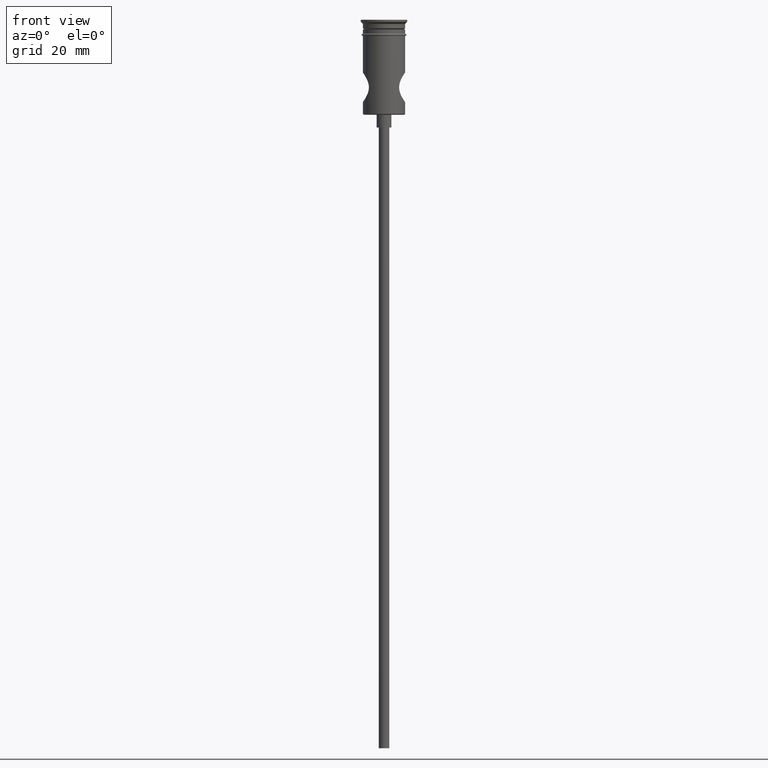
[diagram: clean part render]
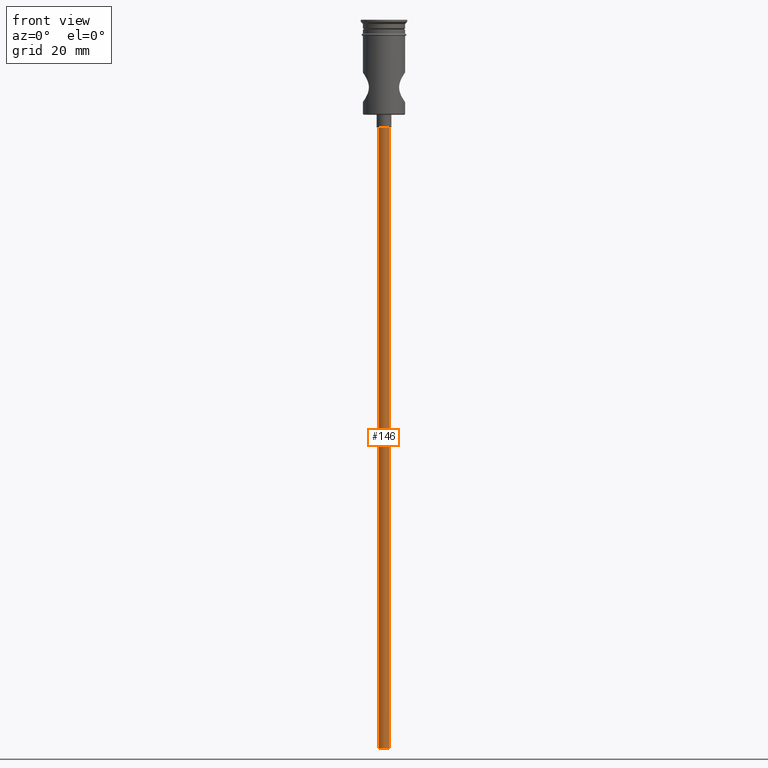
[diagram: same view with one face highlighted and labeled with its STEP entity id]
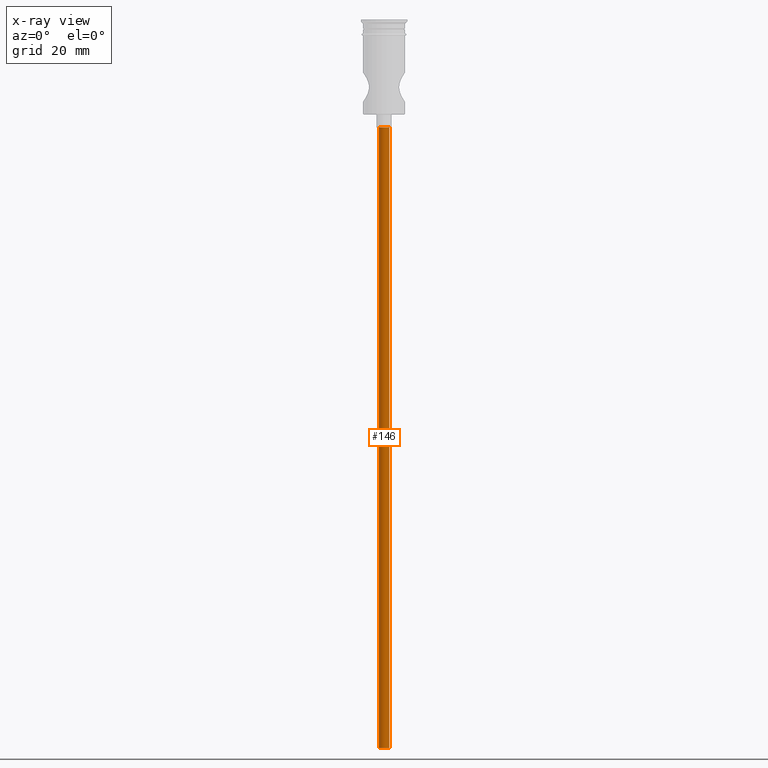
[diagram: x-ray of the same camera — body ghosted, the highlighted face saturated]
A machine part, front view. The second image highlights one B-rep face of the part: STEP entity #146.
The next image is the same camera in x-ray: the body ghosted, the highlighted face saturated — about 0% of this face is hidden behind the body in this view.
In plain terms, the highlighted cylindrical surface (edge-blend (fillet) strip) has radius 1.25 mm, axis along (-0, -0, 1).
Its self-contained STEP definition (entity closure, byte-faithful):
#35 = LINE ( 'NONE', #1023, #273 ) ;
#40 = EDGE_LOOP ( 'NONE', ( #1019, #578, #378, #312 ) ) ;
#93 = VERTEX_POINT ( 'NONE', #1196 ) ;
#146 = ADVANCED_FACE ( 'NONE', ( #863 ), #1320, .T. ) ;
#163 = DIRECTION ( 'NONE',  ( -1.000000000000000000, 0.000000000000000000, 0.000000000000000000 ) ) ;
#176 = CARTESIAN_POINT ( 'NONE',  ( 0.000000000000000000, 0.000000000000000000, -172.5000000000000000 ) ) ;
#260 = CARTESIAN_POINT ( 'NONE',  ( 0.000000000000000000, 0.000000000000000000, -25.50000000000000000 ) ) ;
#262 = CARTESIAN_POINT ( 'NONE',  ( -1.250000000000000000, 1.530808498934191571E-16, -25.50000000000000000 ) ) ;
#273 = VECTOR ( 'NONE', #477, 1000.000000000000000 ) ;
#292 = AXIS2_PLACEMENT_3D ( 'NONE', #769, #791, #1120 ) ;
#312 = ORIENTED_EDGE ( 'NONE', *, *, #643, .T. ) ;
#378 = ORIENTED_EDGE ( 'NONE', *, *, #766, .T. ) ;
#402 = EDGE_CURVE ( 'NONE', #93, #1071, #454, .T. ) ;
#454 = CIRCLE ( 'NONE', #1414, 1.250000000000000000 ) ;
#477 = DIRECTION ( 'NONE',  ( -0.000000000000000000, -0.000000000000000000, 1.000000000000000000 ) ) ;
#540 = DIRECTION ( 'NONE',  ( -0.000000000000000000, -0.000000000000000000, 1.000000000000000000 ) ) ;
#578 = ORIENTED_EDGE ( 'NONE', *, *, #402, .F. ) ;
#583 = DIRECTION ( 'NONE',  ( 0.000000000000000000, 0.000000000000000000, -1.000000000000000000 ) ) ;
#643 = EDGE_CURVE ( 'NONE', #666, #1186, #920, .T. ) ;
#666 = VERTEX_POINT ( 'NONE', #912 ) ;
#766 = EDGE_CURVE ( 'NONE', #93, #666, #855, .T. ) ;
#769 = CARTESIAN_POINT ( 'NONE',  ( 0.000000000000000000, 0.000000000000000000, -172.5000000000000000 ) ) ;
#781 = AXIS2_PLACEMENT_3D ( 'NONE', #260, #583, #163 ) ;
#791 = DIRECTION ( 'NONE',  ( -0.000000000000000000, -0.000000000000000000, 1.000000000000000000 ) ) ;
#829 = DIRECTION ( 'NONE',  ( 0.000000000000000000, 0.000000000000000000, -1.000000000000000000 ) ) ;
#855 = LINE ( 'NONE', #1087, #995 ) ;
#863 = FACE_OUTER_BOUND ( 'NONE', #40, .T. ) ;
#911 = CARTESIAN_POINT ( 'NONE',  ( -1.250000000000000000, 1.530808498934191571E-16, -172.5000000000000000 ) ) ;
#912 = CARTESIAN_POINT ( 'NONE',  ( 1.250000000000000000, 0.000000000000000000, -25.50000000000000000 ) ) ;
#920 = CIRCLE ( 'NONE', #781, 1.250000000000000000 ) ;
#995 = VECTOR ( 'NONE', #540, 1000.000000000000000 ) ;
#1019 = ORIENTED_EDGE ( 'NONE', *, *, #1155, .F. ) ;
#1023 = CARTESIAN_POINT ( 'NONE',  ( -1.250000000000000000, 1.530808498934191571E-16, -172.5000000000000000 ) ) ;
#1071 = VERTEX_POINT ( 'NONE', #911 ) ;
#1087 = CARTESIAN_POINT ( 'NONE',  ( 1.250000000000000000, 0.000000000000000000, -172.5000000000000000 ) ) ;
#1120 = DIRECTION ( 'NONE',  ( 1.000000000000000000, 0.000000000000000000, 0.000000000000000000 ) ) ;
#1155 = EDGE_CURVE ( 'NONE', #1071, #1186, #35, .T. ) ;
#1186 = VERTEX_POINT ( 'NONE', #262 ) ;
#1196 = CARTESIAN_POINT ( 'NONE',  ( 1.250000000000000000, 0.000000000000000000, -172.5000000000000000 ) ) ;
#1278 = DIRECTION ( 'NONE',  ( -1.000000000000000000, 0.000000000000000000, 0.000000000000000000 ) ) ;
#1320 = CYLINDRICAL_SURFACE ( 'NONE', #292, 1.250000000000000000 ) ;
#1414 = AXIS2_PLACEMENT_3D ( 'NONE', #176, #829, #1278 ) ;